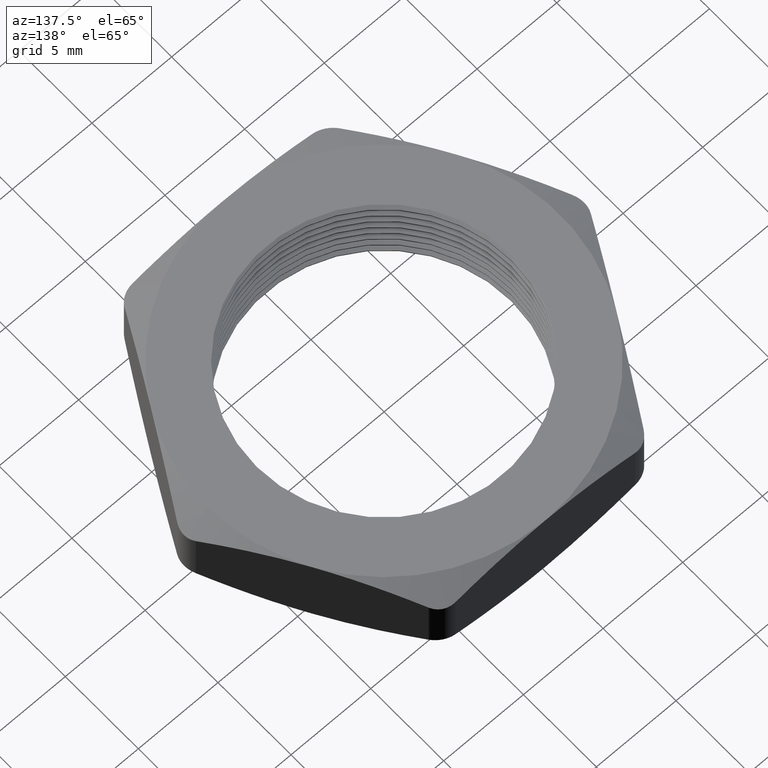
[diagram: clean part render]
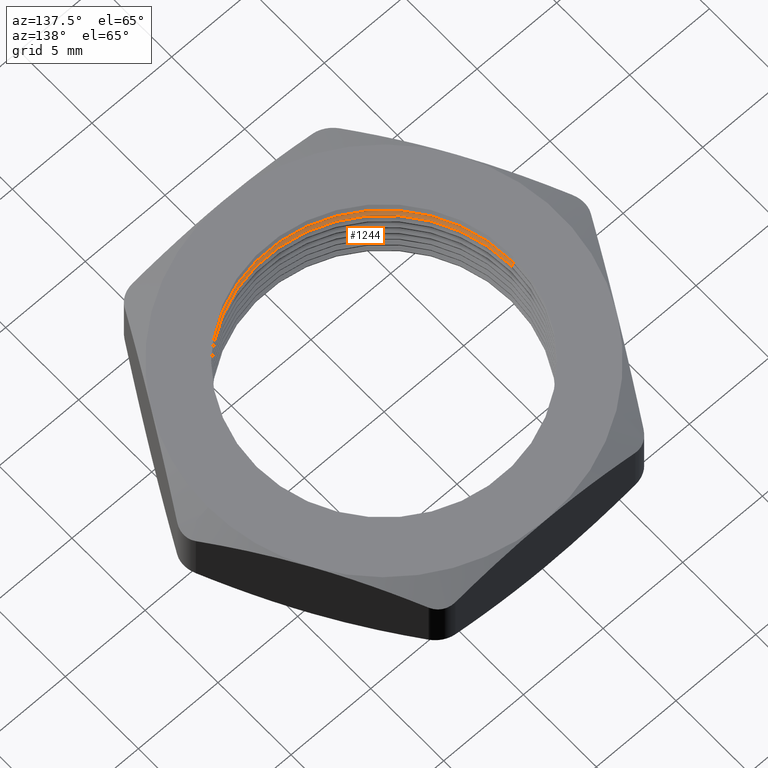
[diagram: same view with one face highlighted and labeled with its STEP entity id]
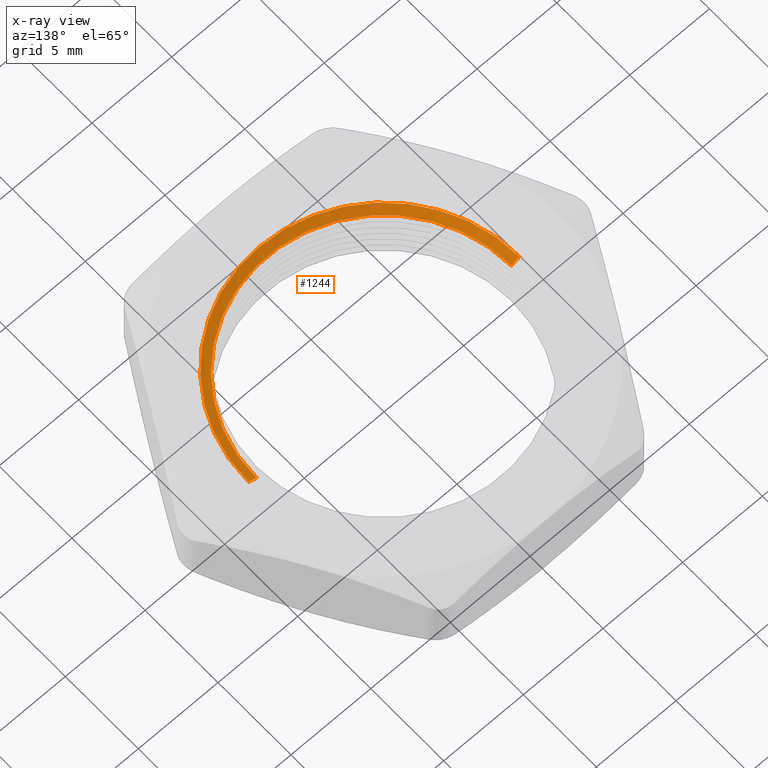
[diagram: x-ray of the same camera — body ghosted, the highlighted face saturated]
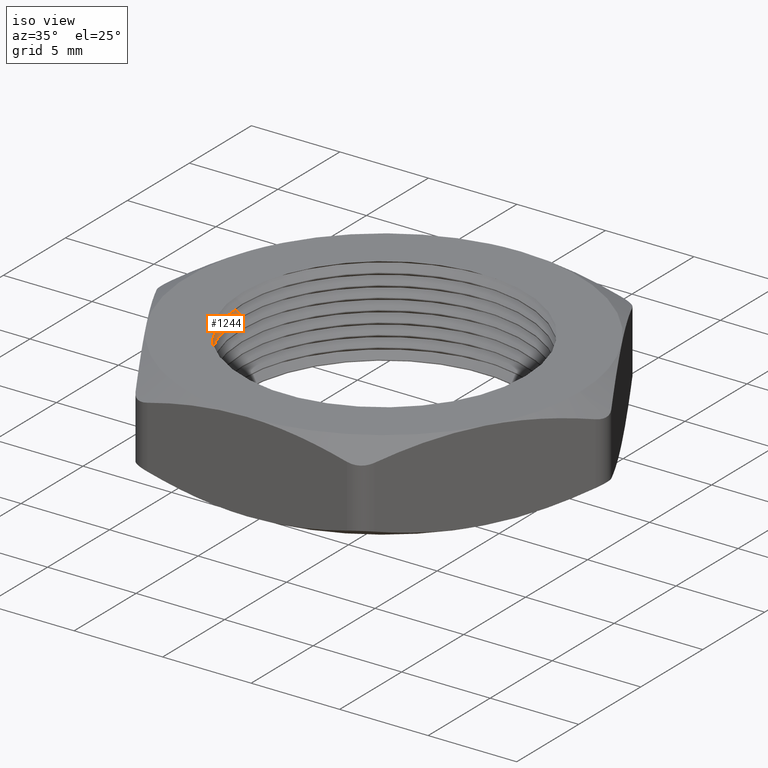
[diagram: same view with one face highlighted and labeled with its STEP entity id]
A machine part, auxiliary view. The second image highlights one B-rep face of the part: STEP entity #1244.
The next image is the same camera in x-ray: the body ghosted, the highlighted face saturated — about 0% of this face is hidden behind the body in this view.
A second angle (iso view) of the same face is appended — the face is thin or edge-on in the first view.
In plain terms, the highlighted conical surface has half-angle 60 deg.
Its self-contained STEP definition (entity closure, byte-faithful):
#1238 = ORIENTED_EDGE ( 'NONE', *, *, #1241, .F. ) ;
#1239 = EDGE_LOOP ( 'NONE', ( #1238, #1245, #1281, #1284 ) ) ;
#1240 = VERTEX_POINT ( 'NONE', #1900 ) ;
#1241 = EDGE_CURVE ( 'NONE', #1242, #1240, #1899, .T. ) ;
#1242 = VERTEX_POINT ( 'NONE', #1894 ) ;
#1244 = ADVANCED_FACE ( 'NONE', ( #1893 ), #1886, .F. ) ;
#1245 = ORIENTED_EDGE ( 'NONE', *, *, #1279, .T. ) ;
#1279 = EDGE_CURVE ( 'NONE', #1242, #1280, #1937, .T. ) ;
#1280 = VERTEX_POINT ( 'NONE', #1932 ) ;
#1281 = ORIENTED_EDGE ( 'NONE', *, *, #1282, .T. ) ;
#1282 = EDGE_CURVE ( 'NONE', #1280, #1283, #2169, .T. ) ;
#1283 = VERTEX_POINT ( 'NONE', #2172 ) ;
#1284 = ORIENTED_EDGE ( 'NONE', *, *, #1285, .F. ) ;
#1285 = EDGE_CURVE ( 'NONE', #1240, #1283, #2168, .T. ) ;
#1886 = CONICAL_SURFACE ( 'NONE', #2048, 0.3150000000000000000, 1.047197551196593600 ) ;
#1887 = CARTESIAN_POINT ( 'NONE',  ( 0.0000000000000000000, 0.0000000000000000000, 0.1519059892324151900 ) ) ;
#1893 = FACE_OUTER_BOUND ( 'NONE', #1239, .T. ) ;
#1894 = CARTESIAN_POINT ( 'NONE',  ( -0.3150000000000000000, 0.0000000000000000000, 0.1519059892324151900 ) ) ;
#1895 = DIRECTION ( 'NONE',  ( 1.000000000000000000, 0.0000000000000000000, 0.0000000000000000000 ) ) ;
#1896 = DIRECTION ( 'NONE',  ( 0.0000000000000000000, 0.0000000000000000000, 1.000000000000000000 ) ) ;
#1897 = CARTESIAN_POINT ( 'NONE',  ( 0.0000000000000000000, 0.0000000000000000000, 0.1519059892324151900 ) ) ;
#1898 = AXIS2_PLACEMENT_3D ( 'NONE', #1897, #1896, #1895 ) ;
#1899 = CIRCLE ( 'NONE', #1898, 0.3150000000000000000 ) ;
#1900 = CARTESIAN_POINT ( 'NONE',  ( 0.3150000000000000000, 3.857637417314162700E-017, 0.1519059892324151900 ) ) ;
#1932 = CARTESIAN_POINT ( 'NONE',  ( -0.3349999999999999600, 0.0000000000000000000, 0.1634529946162078000 ) ) ;
#1934 = DIRECTION ( 'NONE',  ( -0.8660254037844366000, 1.060575238724904300E-016, 0.5000000000000035500 ) ) ;
#1935 = VECTOR ( 'NONE', #1934, 39.37007874015748100 ) ;
#1936 = CARTESIAN_POINT ( 'NONE',  ( -0.3150000000000000000, 3.857637417314162700E-017, 0.1519059892324151900 ) ) ;
#1937 = LINE ( 'NONE', #1936, #1935 ) ;
#2046 = DIRECTION ( 'NONE',  ( 1.000000000000000000, 0.0000000000000000000, 0.0000000000000000000 ) ) ;
#2047 = DIRECTION ( 'NONE',  ( 0.0000000000000000000, 0.0000000000000000000, 1.000000000000000000 ) ) ;
#2048 = AXIS2_PLACEMENT_3D ( 'NONE', #1887, #2047, #2046 ) ;
#2082 = DIRECTION ( 'NONE',  ( 0.0000000000000000000, 0.0000000000000000000, 1.000000000000000000 ) ) ;
#2102 = VECTOR ( 'NONE', #2166, 39.37007874015748100 ) ;
#2166 = DIRECTION ( 'NONE',  ( 0.8660254037844366000, 0.0000000000000000000, 0.5000000000000035500 ) ) ;
#2167 = CARTESIAN_POINT ( 'NONE',  ( 0.3150000000000000000, 0.0000000000000000000, 0.1519059892324151900 ) ) ;
#2168 = LINE ( 'NONE', #2167, #2102 ) ;
#2169 = CIRCLE ( 'NONE', #2252, 0.3349999999999999600 ) ;
#2172 = CARTESIAN_POINT ( 'NONE',  ( 0.3349999999999999600, 4.102566777143632800E-017, 0.1634529946162078000 ) ) ;
#2197 = DIRECTION ( 'NONE',  ( 1.000000000000000000, 0.0000000000000000000, 0.0000000000000000000 ) ) ;
#2251 = CARTESIAN_POINT ( 'NONE',  ( 0.0000000000000000000, 0.0000000000000000000, 0.1634529946162078000 ) ) ;
#2252 = AXIS2_PLACEMENT_3D ( 'NONE', #2251, #2082, #2197 ) ;